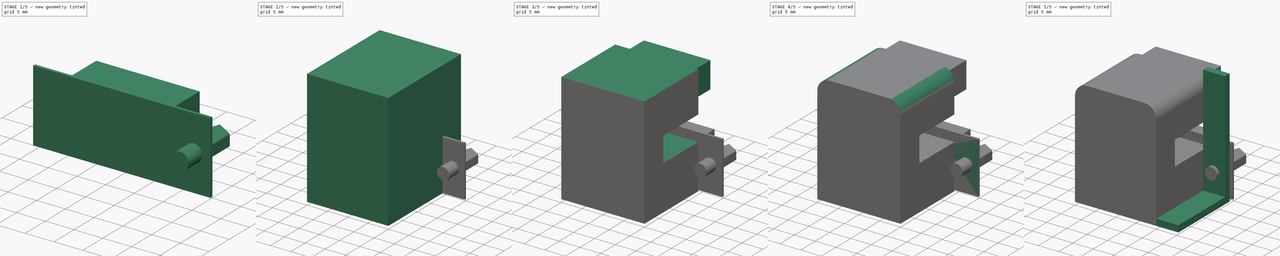
[diagram: build sequence overview — one tinted view per stage of 5, left to right]
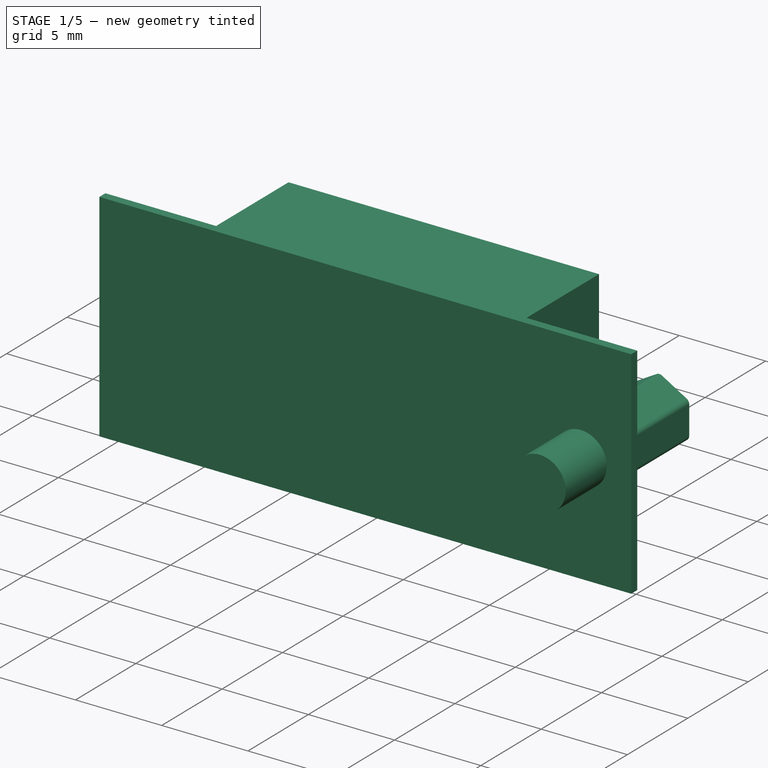
[diagram: stage 1 of 5 — iso view after this stage's code; geometry added in this stage tinted green]
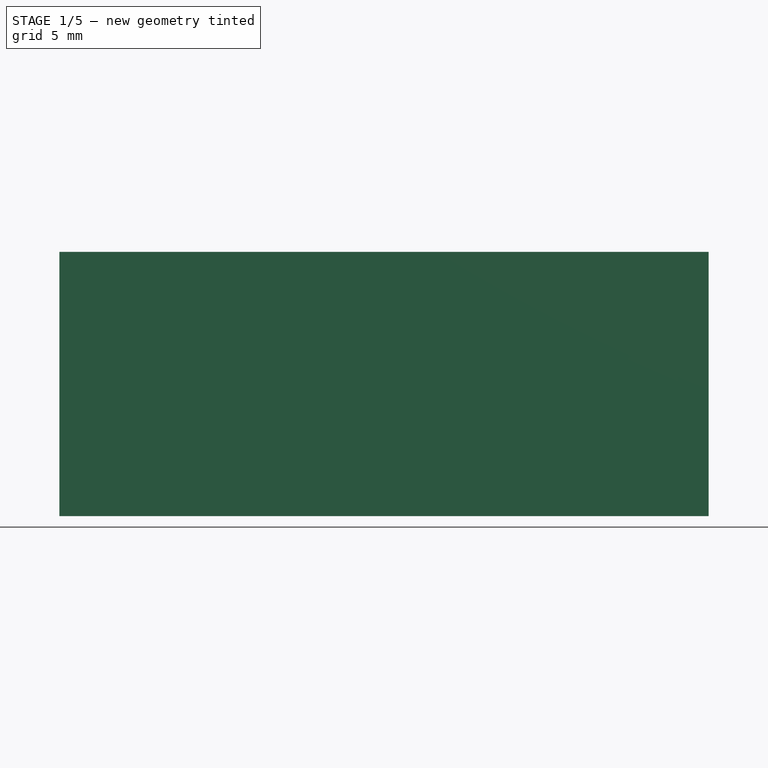
[diagram: stage 1 of 5 — front view after this stage's code; geometry added in this stage tinted green]
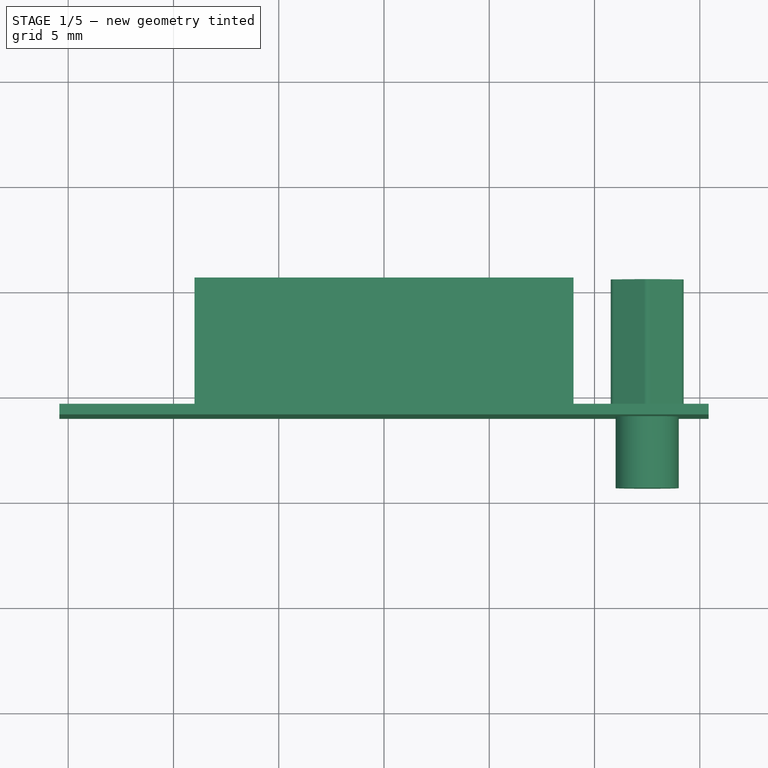
[diagram: stage 1 of 5 — top view after this stage's code; geometry added in this stage tinted green]
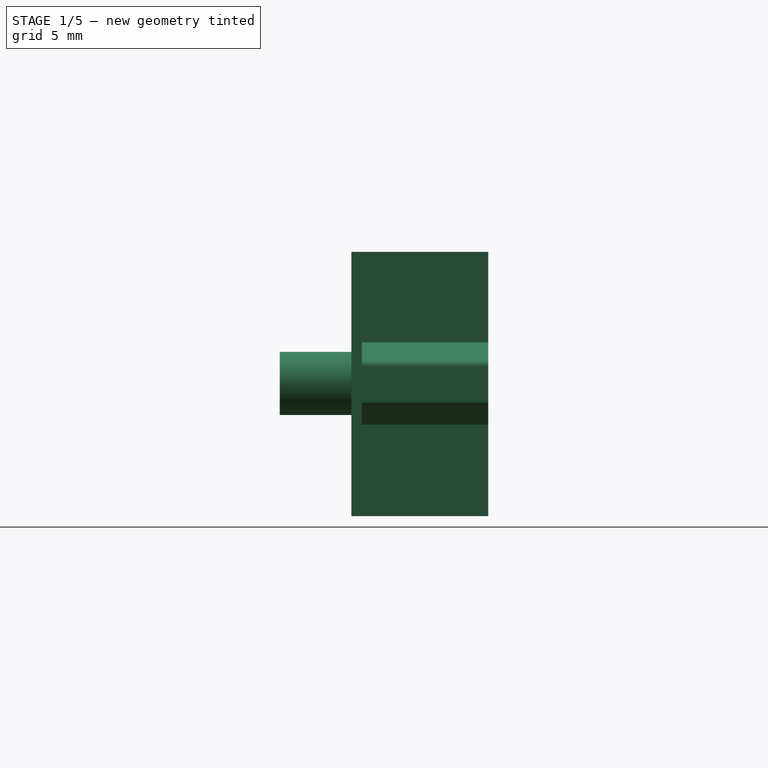
[diagram: stage 1 of 5 — right view after this stage's code; geometry added in this stage tinted green]
FCSTD DOCUMENT  (FreeCAD 0.19R24291 (Git))
Label: Amphenol_L17H1220134
License: All rights reserved
LicenseURL: http://en.wikipedia.org/wiki/All_rights_reserved
objects: PartDesign::SubtractiveBox×36, PartDesign::Fillet×21, PartDesign::SubtractiveCylinder×12, PartDesign::AdditiveBox×11, PartDesign::Body×10, PartDesign::AdditiveCylinder×6, PartDesign::SubtractiveCone×4, PartDesign::AdditivePrism×4, Sketcher::SketchObject×2, PartDesign::Chamfer×2, Part::Feature×1
note: 205 computed .brp shape members not serialized (recipe doc carries the construction recipe); baked Part::Feature solids carry a one-line shape summary decoded from their .brp

FEATURE [PartDesign::Body] Body  label="plastic-Chassis"
  Group = -> [Sketch,Box,Box001,Box002,Box003,Box008,Box009,Box010,Box011,Box012,Box019,Box020,Box021,Box022,Cylinder,Cylinder001,Cylinder002,Cylinder003,Box023,Box024,Box025,Box026,Box027,Box028,Box029,Box030,Box033,Box034,Cylinder006,Box035,Box036,Cylinder007,Box037,Box038,Fillet008]
  Origin = -> Origin
  Tip = -> Fillet008
FEATURE [PartDesign::AdditiveBox] Box042
  AttacherType = Attacher::AttachEngine3D
  AttachmentOffset = pos=(-15.42,19,0) rot=(0,0,1;0rad)
  Height = 12.55
  Length = 30.84
  MapMode = 5
  Placement = pos=(-15.42,19,0) rot=(0,0,1;0rad)
  Support = -> [XY_Plane005]
  Width = 6.5
FEATURE [PartDesign::SubtractiveBox] Box043
  AttacherType = Attacher::AttachEngine3D
  AttachmentOffset = pos=(9,19.5,0) rot=(0,0,1;0rad)
  BaseFeature = -> Box042
  Height = 12.55
  Length = 6.5
  MapMode = 5
  Placement = pos=(9,19.5,0) rot=(0,0,1;0rad)
  Support = -> [XY_Plane005]
  Width = 6
FEATURE [PartDesign::SubtractiveBox] Box040
  AttacherType = Attacher::AttachEngine3D
  AttachmentOffset = pos=(-15.5,19.5,0) rot=(0,0,1;0rad)
  BaseFeature = -> Box043
  Height = 12.55
  Length = 6.5
  MapMode = 5
  Placement = pos=(-15.5,19.5,0) rot=(0,0,1;0rad)
  Support = -> [XY_Plane005]
  Width = 6
FEATURE [PartDesign::Body] Body005  label="Front-plate002"
  Group = -> [Box042,Box043,Box040,Box044,Box041,Box039,Cylinder008,Cylinder009,Chamfer001,Fillet012,Fillet009,Fillet013,Fillet010,Fillet014,Fillet011,Cone002,Fillet015,Cone003,Fillet016,Box045,Box046]
  Origin = -> Origin005
  Placement = pos=(0,0,15.85) rot=(0,0,1;0rad)
  Tip = -> Box046
FEATURE [PartDesign::AdditivePrism] Prism
  AttacherType = Attacher::AttachEngine3D
  AttachmentOffset = pos=(12.5,25.5,6.3) rot=(0.57735,0.57735,-0.57735;2.0944rad)
  Circumradius = 2
  FirstAngle = 0
  Height = 6.5
  MapMode = 5
  Placement = pos=(12.5,25.5,6.3) rot=(0.57735,0.57735,-0.57735;2.0944rad)
  Polygon = 6
  SecondAngle = 0
  Support = -> [XY_Plane006]
FEATURE [PartDesign::Fillet] Fillet017
  Base = -> Prism [Edge8,Edge5,Edge11,Edge2,Edge1,Edge14]
  BaseFeature = -> Prism
  Placement = pos=(12.5,25.5,6.3) rot=(0.57735,0.57735,-0.57735;2.0944rad)
  Radius = 0.3
  SupportTransform = false
FEATURE [PartDesign::AdditiveCylinder] Cylinder010
  Angle = 360
  AttacherType = Attacher::AttachEngine3D
  AttachmentOffset = pos=(12.5,19,6.3) rot=(1,0,0;1.5708rad)
  BaseFeature = -> Fillet017
  Height = 3.4
  MapMode = 5
  Placement = pos=(12.5,19,6.3) rot=(1,0,0;1.5708rad)
  Radius = 1.5
  Support = -> [XY_Plane006]
FEATURE [PartDesign::SubtractiveCylinder] Cylinder011
  Angle = 360
  AttacherType = Attacher::AttachEngine3D
  AttachmentOffset = pos=(12.5,26,6.3) rot=(1,0,0;1.5708rad)
  BaseFeature = -> Cylinder010
  Height = 6.5
  MapMode = 5
  Placement = pos=(12.5,26,6.3) rot=(1,0,0;1.5708rad)
  Radius = 1
  Support = -> [XY_Plane006]
FEATURE [PartDesign::Body] Body006  label="screw1"
  Group = -> [Prism,Fillet017,Cylinder010,Cylinder011]
  Origin = -> Origin006
  Tip = -> Cylinder011
FEATURE [PartDesign::AdditivePrism] Prism001
  AttacherType = Attacher::AttachEngine3D
  AttachmentOffset = pos=(12.5,25.5,6.3) rot=(0.57735,0.57735,-0.57735;2.0944rad)
  Circumradius = 2
  FirstAngle = 0
  Height = 6.5
  MapMode = 5
  Placement = pos=(12.5,25.5,6.3) rot=(0.57735,0.57735,-0.57735;2.0944rad)
  Polygon = 6
  SecondAngle = 0
  Support = -> [XY_Plane007]
FEATURE [PartDesign::Fillet] Fillet018
  Base = -> Prism001 [Edge8,Edge5,Edge11,Edge2,Edge1,Edge14]
  BaseFeature = -> Prism001
  Placement = pos=(12.5,25.5,6.3) rot=(0.57735,0.57735,-0.57735;2.0944rad)
  Radius = 0.3
  SupportTransform = false
FEATURE [PartDesign::AdditiveCylinder] Cylinder012
  Angle = 360
  AttacherType = Attacher::AttachEngine3D
  AttachmentOffset = pos=(12.5,19,6.3) rot=(1,0,0;1.5708rad)
  BaseFeature = -> Fillet018
  Height = 3.4
  MapMode = 5
  Placement = pos=(12.5,19,6.3) rot=(1,0,0;1.5708rad)
  Radius = 1.5
  Support = -> [XY_Plane007]
FEATURE [PartDesign::SubtractiveCylinder] Cylinder013
  Angle = 360
  AttacherType = Attacher::AttachEngine3D
  AttachmentOffset = pos=(12.5,26,6.3) rot=(1,0,0;1.5708rad)
  BaseFeature = -> Cylinder012
  Height = 6.5
  MapMode = 5
  Placement = pos=(12.5,26,6.3) rot=(1,0,0;1.5708rad)
  Radius = 1
  Support = -> [XY_Plane007]
FEATURE [PartDesign::Body] Body007  label="screw002"
  Group = -> [Prism001,Fillet018,Cylinder012,Cylinder013]
  Origin = -> Origin007
  Placement = pos=(-25,0,0) rot=(0,0,1;0rad)
  Tip = -> Cylinder013
FEATURE [PartDesign::AdditivePrism] Prism002
  AttacherType = Attacher::AttachEngine3D
  AttachmentOffset = pos=(12.5,25.5,6.3) rot=(0.57735,0.57735,-0.57735;2.0944rad)
  Circumradius = 2
  FirstAngle = 0
  Height = 6.5
  MapMode = 5
  Placement = pos=(12.5,25.5,6.3) rot=(0.57735,0.57735,-0.57735;2.0944rad)
  Polygon = 6
  SecondAngle = 0
  Support = -> [XY_Plane008]
FEATURE [PartDesign::Fillet] Fillet019
  Base = -> Prism002 [Edge8,Edge5,Edge11,Edge2,Edge1,Edge14]
  BaseFeature = -> Prism002
  Placement = pos=(12.5,25.5,6.3) rot=(0.57735,0.57735,-0.57735;2.0944rad)
  Radius = 0.3
  SupportTransform = false
FEATURE [PartDesign::AdditiveCylinder] Cylinder014
  Angle = 360
  AttacherType = Attacher::AttachEngine3D
  AttachmentOffset = pos=(12.5,19,6.3) rot=(1,0,0;1.5708rad)
  BaseFeature = -> Fillet019
  Height = 3.4
  MapMode = 5
  Placement = pos=(12.5,19,6.3) rot=(1,0,0;1.5708rad)
  Radius = 1.5
  Support = -> [XY_Plane008]
FEATURE [PartDesign::SubtractiveCylinder] Cylinder015
  Angle = 360
  AttacherType = Attacher::AttachEngine3D
  AttachmentOffset = pos=(12.5,26,6.3) rot=(1,0,0;1.5708rad)
  BaseFeature = -> Cylinder014
  Height = 6.5
  MapMode = 5
  Placement = pos=(12.5,26,6.3) rot=(1,0,0;1.5708rad)
  Radius = 1
  Support = -> [XY_Plane008]
FEATURE [PartDesign::Body] Body008  label="screw003"
  Group = -> [Prism002,Fillet019,Cylinder014,Cylinder015]
  Origin = -> Origin008
  Placement = pos=(0,0,15.85) rot=(0,0,1;0rad)
  Tip = -> Cylinder015
FEATURE [PartDesign::AdditivePrism] Prism003
  AttacherType = Attacher::AttachEngine3D
  AttachmentOffset = pos=(12.5,25.5,6.3) rot=(0.57735,0.57735,-0.57735;2.0944rad)
  Circumradius = 2
  FirstAngle = 0
  Height = 6.5
  MapMode = 5
  Placement = pos=(12.5,25.5,6.3) rot=(0.57735,0.57735,-0.57735;2.0944rad)
  Polygon = 6
  SecondAngle = 0
  Support = -> [XY_Plane009]
FEATURE [PartDesign::Fillet] Fillet020
  Base = -> Prism003 [Edge8,Edge5,Edge11,Edge2,Edge1,Edge14]
  BaseFeature = -> Prism003
  Placement = pos=(12.5,25.5,6.3) rot=(0.57735,0.57735,-0.57735;2.0944rad)
  Radius = 0.3
  SupportTransform = false
FEATURE [PartDesign::AdditiveCylinder] Cylinder016
  Angle = 360
  AttacherType = Attacher::AttachEngine3D
  AttachmentOffset = pos=(12.5,19,6.3) rot=(1,0,0;1.5708rad)
  BaseFeature = -> Fillet020
  Height = 3.4
  MapMode = 5
  Placement = pos=(12.5,19,6.3) rot=(1,0,0;1.5708rad)
  Radius = 1.5
  Support = -> [XY_Plane009]
FEATURE [PartDesign::SubtractiveCylinder] Cylinder017
  Angle = 360
  AttacherType = Attacher::AttachEngine3D
  AttachmentOffset = pos=(12.5,26,6.3) rot=(1,0,0;1.5708rad)
  BaseFeature = -> Cylinder016
  Height = 6.5
  MapMode = 5
  Placement = pos=(12.5,26,6.3) rot=(1,0,0;1.5708rad)
  Radius = 1
  Support = -> [XY_Plane009]
FEATURE [PartDesign::Body] Body009  label="screw004"
  Group = -> [Prism003,Fillet020,Cylinder016,Cylinder017]
  Origin = -> Origin009
  Placement = pos=(-25,0,15.85) rot=(0,0,1;0rad)
  Tip = -> Cylinder017
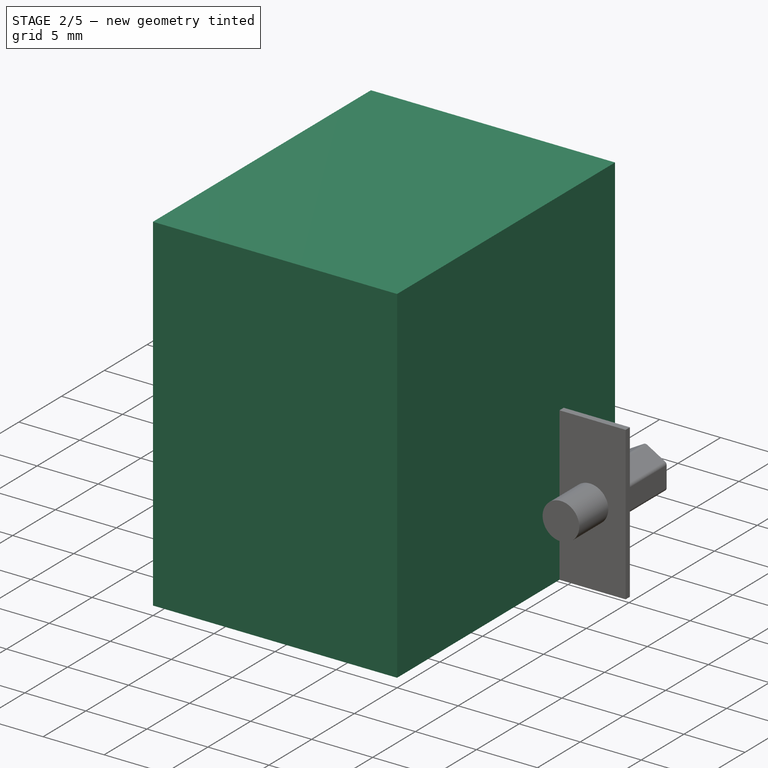
[diagram: stage 2 of 5 — iso view after this stage's code; geometry added in this stage tinted green]
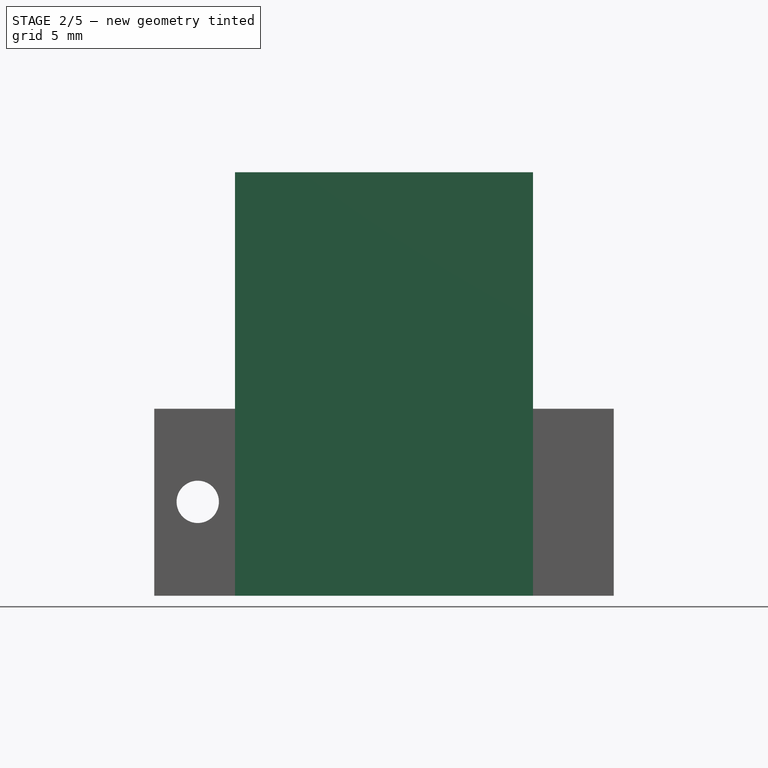
[diagram: stage 2 of 5 — front view after this stage's code; geometry added in this stage tinted green]
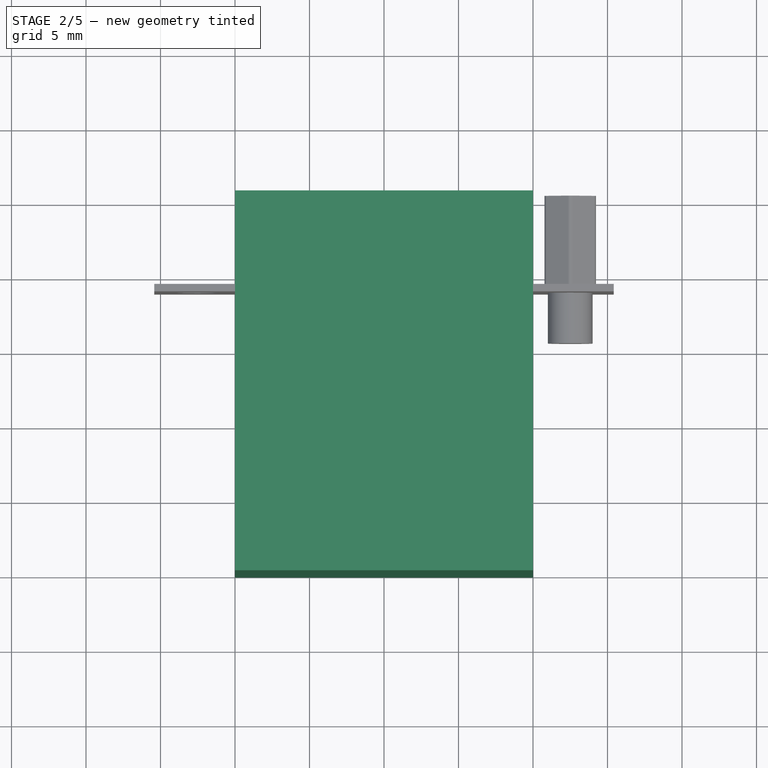
[diagram: stage 2 of 5 — top view after this stage's code; geometry added in this stage tinted green]
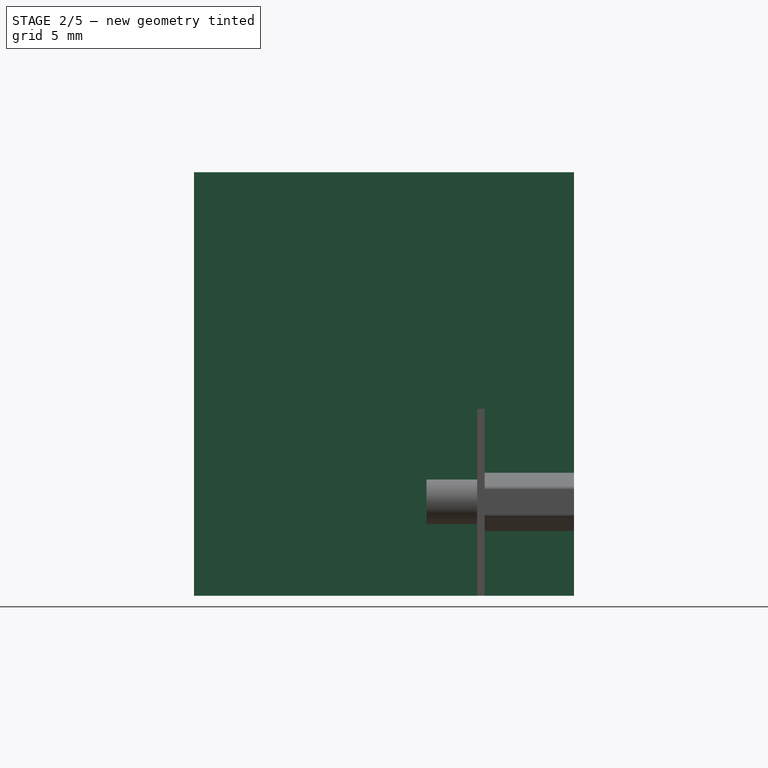
[diagram: stage 2 of 5 — right view after this stage's code; geometry added in this stage tinted green]
FEATURE [Sketcher::SketchObject] Sketch  label="outline-sketch"
  FullyConstrained = false
  MapMode = 5
  Support = -> [XY_Plane]
  sketch-geometry (16):
    g0: LineSegment StartX=-15.495 StartY=6.37755e-05 StartZ=0 EndX=-15.47 EndY=19.6001 EndZ=0
    g1: LineSegment StartX=-15.37 StartY=19.5999 StartZ=0 EndX=-15.395 EndY=-6.37755e-05 EndZ=0
    g2: LineSegment StartX=-15.42 StartY=19.65 StartZ=0 EndX=-8.46 EndY=19.65 EndZ=0
    g3: LineSegment StartX=-8.46 StartY=19.55 StartZ=0 EndX=-15.42 EndY=19.55 EndZ=0
    g4: LineSegment StartX=15.42 StartY=19.55 StartZ=0 EndX=-15.42 EndY=19.55 EndZ=0
    g5: LineSegment StartX=-15.42 StartY=19.65 StartZ=0 EndX=15.42 EndY=19.65 EndZ=0
    g6: LineSegment StartX=8.41 StartY=19.6 StartZ=0 EndX=8.41 EndY=25.5 EndZ=0
    g7: LineSegment StartX=8.51 StartY=25.5 StartZ=0 EndX=8.51 EndY=19.6 EndZ=0
    g8: LineSegment StartX=-8.41 StartY=25.5 StartZ=0 EndX=-8.41 EndY=19.6 EndZ=0
    g9: LineSegment StartX=-8.51 StartY=19.6 StartZ=0 EndX=-8.51 EndY=25.5 EndZ=0
    g10: LineSegment StartX=8.46 StartY=25.45 StartZ=0 EndX=-8.46 EndY=25.45 EndZ=0
    g11: LineSegment StartX=-8.46 StartY=25.55 StartZ=0 EndX=8.46 EndY=25.55 EndZ=0
    g12: LineSegment StartX=15.37 StartY=0 StartZ=0 EndX=15.37 EndY=19.6 EndZ=0
    g13: LineSegment StartX=15.47 StartY=19.6 StartZ=0 EndX=15.47 EndY=0 EndZ=0
    g14: LineSegment StartX=15.42 StartY=-0.05 StartZ=0 EndX=-15.445 EndY=-0.05 EndZ=0
    g15: LineSegment StartX=-15.445 StartY=0.05 StartZ=0 EndX=15.42 EndY=0.05 EndZ=0
FEATURE [Sketcher::SketchObject] Sketch001  label="Pins-sketch"
  FullyConstrained = false
  MapMode = 5
  Support = -> [XY_Plane001]
  sketch-geometry (44):
    g0: Circle CenterX=4.155 CenterY=11.6 CenterZ=0 NormalX=0 NormalY=0 NormalZ=1 AngleXU=0 Radius=0.515
    g1: Circle CenterX=4.155 CenterY=11.6 CenterZ=0 NormalX=0 NormalY=0 NormalZ=1 AngleXU=0 Radius=0.51
    g2: Circle CenterX=-2.77 CenterY=9.06 CenterZ=0 NormalX=0 NormalY=0 NormalZ=1 AngleXU=0 Radius=0.515
    g3: Circle CenterX=-2.77 CenterY=9.06 CenterZ=0 NormalX=0 NormalY=0 NormalZ=1 AngleXU=0 Radius=0.51
    g4: Circle CenterX=-5.48 CenterY=9.06 CenterZ=0 NormalX=0 NormalY=0 NormalZ=1 AngleXU=0 Radius=0.515
    g5: Circle CenterX=-5.48 CenterY=9.06 CenterZ=0 NormalX=0 NormalY=0 NormalZ=1 AngleXU=0 Radius=0.51
    g6: Circle CenterX=-1.385 CenterY=11.6 CenterZ=0 NormalX=0 NormalY=0 NormalZ=1 AngleXU=0 Radius=0.515
    g7: Circle CenterX=-1.385 CenterY=11.6 CenterZ=0 NormalX=0 NormalY=0 NormalZ=1 AngleXU=0 Radius=0.51
    g8: Circle CenterX=1.385 CenterY=11.6 CenterZ=0 NormalX=0 NormalY=0 NormalZ=1 AngleXU=0 Radius=0.515
    g9: Circle CenterX=1.385 CenterY=11.6 CenterZ=0 NormalX=0 NormalY=0 NormalZ=1 AngleXU=0 Radius=0.51
    g10: Circle CenterX=0 CenterY=8.9076 CenterZ=0 NormalX=0 NormalY=0 NormalZ=1 AngleXU=0 Radius=0.515
    g11: Circle CenterX=0 CenterY=8.9076 CenterZ=0 NormalX=0 NormalY=0 NormalZ=1 AngleXU=0 Radius=0.51
    g12: Circle CenterX=-4.095 CenterY=11.6 CenterZ=0 NormalX=0 NormalY=0 NormalZ=1 AngleXU=0 Radius=0.515
    g13: Circle CenterX=-4.095 CenterY=11.6 CenterZ=0 NormalX=0 NormalY=0 NormalZ=1 AngleXU=0 Radius=0.51
    g14: Circle CenterX=2.77 CenterY=9.06 CenterZ=0 NormalX=0 NormalY=0 NormalZ=1 AngleXU=0 Radius=0.515
    g15: Circle CenterX=2.77 CenterY=9.06 CenterZ=0 NormalX=0 NormalY=0 NormalZ=1 AngleXU=0 Radius=0.51
    g16: Circle CenterX=5.48 CenterY=9.06 CenterZ=0 NormalX=0 NormalY=0 NormalZ=1 AngleXU=0 Radius=0.515
    g17: Circle CenterX=5.48 CenterY=9.06 CenterZ=0 NormalX=0 NormalY=0 NormalZ=1 AngleXU=0 Radius=0.51
    g18: Circle CenterX=12.495 CenterY=11.6 CenterZ=0 NormalX=0 NormalY=0 NormalZ=1 AngleXU=0 Radius=1.53
    g19: Circle CenterX=12.495 CenterY=11.6 CenterZ=0 NormalX=0 NormalY=0 NormalZ=1 AngleXU=0 Radius=1.525
    g20: Circle CenterX=-12.495 CenterY=11.6 CenterZ=0 NormalX=0 NormalY=0 NormalZ=1 AngleXU=0 Radius=1.53
    g21: Circle CenterX=-12.495 CenterY=11.6 CenterZ=0 NormalX=0 NormalY=0 NormalZ=1 AngleXU=0 Radius=1.525
    g22: Circle CenterX=5.48 CenterY=2.6 CenterZ=0 NormalX=0 NormalY=0 NormalZ=1 AngleXU=0 Radius=0.515
    g23: Circle CenterX=5.48 CenterY=2.6 CenterZ=0 NormalX=0 NormalY=0 NormalZ=1 AngleXU=0 Radius=0.51
    g24: Circle CenterX=2.77 CenterY=2.6 CenterZ=0 NormalX=0 NormalY=0 NormalZ=1 AngleXU=0 Radius=0.515
    g25: Circle CenterX=2.77 CenterY=2.6 CenterZ=0 NormalX=0 NormalY=0 NormalZ=1 AngleXU=0 Radius=0.51
    g26: Circle CenterX=0 CenterY=2.4476 CenterZ=0 NormalX=0 NormalY=0 NormalZ=1 AngleXU=0 Radius=0.515
    g27: Circle CenterX=0 CenterY=2.4476 CenterZ=0 NormalX=0 NormalY=0 NormalZ=1 AngleXU=0 Radius=0.51
    g28: Circle CenterX=-2.77 CenterY=2.6 CenterZ=0 NormalX=0 NormalY=0 NormalZ=1 AngleXU=0 Radius=0.515
    g29: Circle CenterX=-2.77 CenterY=2.6 CenterZ=0 NormalX=0 NormalY=0 NormalZ=1 AngleXU=0 Radius=0.51
    g30: Circle CenterX=-5.48 CenterY=2.6 CenterZ=0 NormalX=0 NormalY=0 NormalZ=1 AngleXU=0 Radius=0.515
    g31: Circle CenterX=-5.48 CenterY=2.6 CenterZ=0 NormalX=0 NormalY=0 NormalZ=1 AngleXU=0 Radius=0.51
    g32: Circle CenterX=-4.095 CenterY=5.14 CenterZ=0 NormalX=0 NormalY=0 NormalZ=1 AngleXU=0 Radius=0.515
    g33: Circle CenterX=-4.095 CenterY=5.14 CenterZ=0 NormalX=0 NormalY=0 NormalZ=1 AngleXU=0 Radius=0.51
    g34: Circle CenterX=-1.385 CenterY=5.14 CenterZ=0 NormalX=0 NormalY=0 NormalZ=1 AngleXU=0 Radius=0.515
    g35: Circle CenterX=-1.385 CenterY=5.14 CenterZ=0 NormalX=0 NormalY=0 NormalZ=1 AngleXU=0 Radius=0.51
    g36: Circle CenterX=1.385 CenterY=5.14 CenterZ=0 NormalX=0 NormalY=0 NormalZ=1 AngleXU=0 Radius=0.515
    g37: Circle CenterX=1.385 CenterY=5.14 CenterZ=0 NormalX=0 NormalY=0 NormalZ=1 AngleXU=0 Radius=0.51
    g38: Circle CenterX=4.155 CenterY=5.14 CenterZ=0 NormalX=0 NormalY=0 NormalZ=1 AngleXU=0 Radius=0.515
    g39: Circle CenterX=4.155 CenterY=5.14 CenterZ=0 NormalX=0 NormalY=0 NormalZ=1 AngleXU=0 Radius=0.51
    g40: Circle CenterX=12.495 CenterY=3.87 CenterZ=0 NormalX=0 NormalY=0 NormalZ=1 AngleXU=0 Radius=1.53
    g41: Circle CenterX=12.495 CenterY=3.87 CenterZ=0 NormalX=0 NormalY=0 NormalZ=1 AngleXU=0 Radius=1.525
    g42: Circle CenterX=-12.495 CenterY=3.87 CenterZ=0 NormalX=0 NormalY=0 NormalZ=1 AngleXU=0 Radius=1.53
    g43: Circle CenterX=-12.495 CenterY=3.87 CenterZ=0 NormalX=0 NormalY=0 NormalZ=1 AngleXU=0 Radius=1.525
FEATURE [PartDesign::Body] Body001  label="Pins"
  Group = -> [Sketch001]
  Origin = -> Origin001
FEATURE [PartDesign::AdditiveBox] Box
  AttacherType = Attacher::AttachEngine3D
  AttachmentOffset = pos=(-10,0,0) rot=(0,0,1;0rad)
  Height = 28.42
  Length = 20
  MapMode = 5
  Placement = pos=(-10,0,0) rot=(0,0,1;0rad)
  Support = -> [XY_Plane]
  Width = 25.5
FEATURE [PartDesign::SubtractiveBox] Box044
  AttacherType = Attacher::AttachEngine3D
  AttachmentOffset = pos=(-7.9,19,3) rot=(0,0,1;0rad)
  BaseFeature = -> Box040
  Height = 6.2
  Length = 15.8
  MapMode = 5
  Placement = pos=(-7.9,19,3) rot=(0,0,1;0rad)
  Support = -> [XY_Plane005]
  Width = 7
FEATURE [PartDesign::SubtractiveBox] Box041
  AttacherType = Attacher::AttachEngine3D
  AttachmentOffset = pos=(-11.5,19.5,0) rot=(0,0,1;0rad)
  BaseFeature = -> Box044
  Height = 1.6
  Length = 23
  MapMode = 5
  Placement = pos=(-11.5,19.5,0) rot=(0,0,1;0rad)
  Support = -> [XY_Plane005]
  Width = 6
FEATURE [PartDesign::SubtractiveBox] Box039
  AttacherType = Attacher::AttachEngine3D
  AttachmentOffset = pos=(-9.5,19.5,10.55) rot=(0,0,1;0rad)
  BaseFeature = -> Box041
  Height = 2
  Length = 19
  MapMode = 5
  Placement = pos=(-9.5,19.5,10.55) rot=(0,0,1;0rad)
  Support = -> [XY_Plane005]
  Width = 6
FEATURE [PartDesign::SubtractiveCylinder] Cylinder008  label="screw-hole-front-left001"
  Angle = 360
  AttacherType = Attacher::AttachEngine3D
  AttachmentOffset = pos=(12.5,21,6.3) rot=(1,0,0;1.5708rad)
  BaseFeature = -> Box039
  Height = 3
  MapMode = 5
  Placement = pos=(12.5,21,6.3) rot=(1,0,0;1.5708rad)
  Radius = 1.42
  Support = -> [XY_Plane005]
FEATURE [PartDesign::SubtractiveCylinder] Cylinder009  label="screw-hole-front-right001"
  Angle = 360
  AttacherType = Attacher::AttachEngine3D
  AttachmentOffset = pos=(-12.5,20,6.3) rot=(1,0,0;1.5708rad)
  BaseFeature = -> Cylinder008
  Height = 3
  MapMode = 5
  Placement = pos=(-12.5,20,6.3) rot=(1,0,0;1.5708rad)
  Radius = 1.42
  Support = -> [XY_Plane005]
FEATURE [PartDesign::Chamfer] Chamfer001
  Angle = 10
  Base = -> Cylinder009 [Edge53,Edge55]
  BaseFeature = -> Cylinder009
  ChamferType = 2
  FlipDirection = false
  Placement = pos=(-12.5,20,6.3) rot=(1,0,0;1.5708rad)
  Size = 4.5
  Size2 = 1
  SupportTransform = false
FEATURE [PartDesign::Fillet] Fillet012
  Base = -> Chamfer001 [Edge14]
  BaseFeature = -> Chamfer001
  Placement = pos=(-12.5,20,6.3) rot=(1,0,0;1.5708rad)
  Radius = 5
  SupportTransform = false
FEATURE [PartDesign::Fillet] Fillet009
  Base = -> Fillet012 [Edge16]
  BaseFeature = -> Fillet012
  Placement = pos=(-12.5,20,6.3) rot=(1,0,0;1.5708rad)
  Radius = 1.5
  SupportTransform = false
FEATURE [PartDesign::Fillet] Fillet013
  Base = -> Fillet009 [Edge26]
  BaseFeature = -> Fillet009
  Placement = pos=(-12.5,20,6.3) rot=(1,0,0;1.5708rad)
  Radius = 5
  SupportTransform = false
FEATURE [PartDesign::Fillet] Fillet010
  Base = -> Fillet013 [Edge17]
  BaseFeature = -> Fillet013
  Placement = pos=(-12.5,20,6.3) rot=(1,0,0;1.5708rad)
  Radius = 1.5
  SupportTransform = false
FEATURE [PartDesign::Fillet] Fillet014
  Base = -> Fillet010 [Edge25]
  BaseFeature = -> Fillet010
  Placement = pos=(-12.5,20,6.3) rot=(1,0,0;1.5708rad)
  Radius = 1.5
  SupportTransform = false
FEATURE [PartDesign::Fillet] Fillet011
  Base = -> Fillet014 [Edge18]
  BaseFeature = -> Fillet014
  Placement = pos=(-12.5,20,6.3) rot=(1,0,0;1.5708rad)
  Radius = 1.5
  SupportTransform = false
FEATURE [PartDesign::SubtractiveCone] Cone002
  Angle = 360
  AttacherType = Attacher::AttachEngine3D
  AttachmentOffset = pos=(12.5,19.5,6.3) rot=(1,0,0;1.5708rad)
  BaseFeature = -> Fillet011
  Height = 0.2
  MapMode = 5
  Placement = pos=(12.5,19.5,6.3) rot=(1,0,0;1.5708rad)
  Radius1 = 2.42
  Radius2 = 1.32
  Support = -> [XY_Plane005]
FEATURE [PartDesign::Fillet] Fillet015
  Base = -> Cone002 [Edge56]
  BaseFeature = -> Cone002
  Placement = pos=(12.5,19.5,6.3) rot=(1,0,0;1.5708rad)
  Radius = 0.38
  SupportTransform = false
FEATURE [PartDesign::SubtractiveCone] Cone003
  Angle = 360
  AttacherType = Attacher::AttachEngine3D
  AttachmentOffset = pos=(-12.5,19.5,6.3) rot=(1,0,0;1.5708rad)
  BaseFeature = -> Fillet015
  Height = 0.2
  MapMode = 5
  Placement = pos=(-12.5,19.5,6.3) rot=(1,0,0;1.5708rad)
  Radius1 = 2.42
  Radius2 = 1.32
  Support = -> [XY_Plane005]
FEATURE [PartDesign::Fillet] Fillet016
  Base = -> Cone003 [Edge60]
  BaseFeature = -> Cone003
  Placement = pos=(-12.5,19.5,6.3) rot=(1,0,0;1.5708rad)
  Radius = 0.38
  SupportTransform = false
FEATURE [PartDesign::SubtractiveBox] Box045
  AttacherType = Attacher::AttachEngine3D
  AttachmentOffset = pos=(8,19.5,0) rot=(0,1,0;0.174533rad)
  BaseFeature = -> Fillet016
  Height = 10
  Length = 1
  MapMode = 5
  Placement = pos=(8,19.5,0) rot=(0,1,0;0.174533rad)
  Support = -> [XY_Plane005]
  Width = 6
FEATURE [PartDesign::SubtractiveBox] Box046
  AttacherType = Attacher::AttachEngine3D
  AttachmentOffset = pos=(-9,19.5,0) rot=(0,-1,0;0.174533rad)
  BaseFeature = -> Box045
  Height = 10
  Length = 1
  MapMode = 5
  Placement = pos=(-9,19.5,0) rot=(0,-1,0;0.174533rad)
  Support = -> [XY_Plane005]
  Width = 6
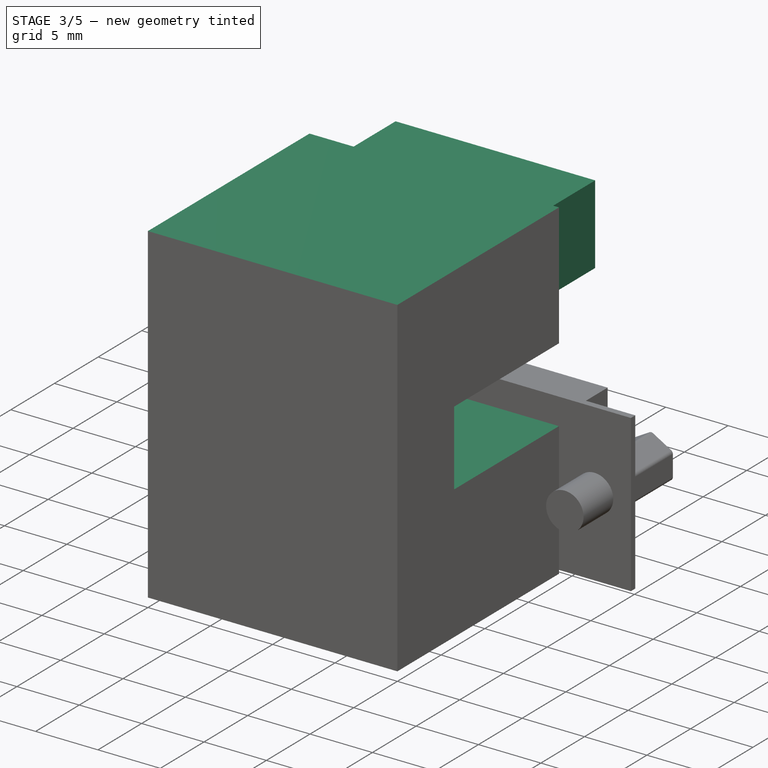
[diagram: stage 3 of 5 — iso view after this stage's code; geometry added in this stage tinted green]
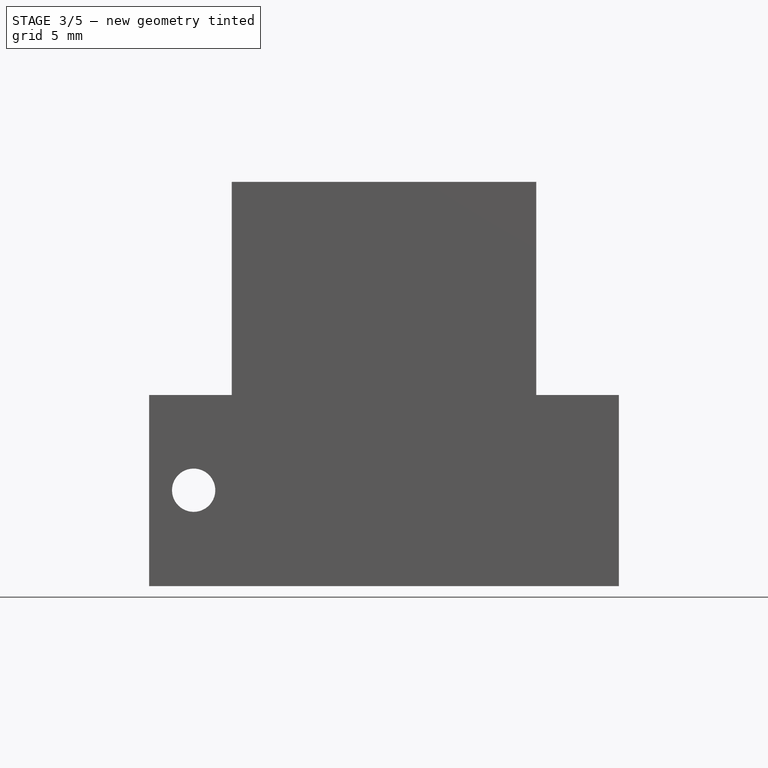
[diagram: stage 3 of 5 — front view after this stage's code; geometry added in this stage tinted green]
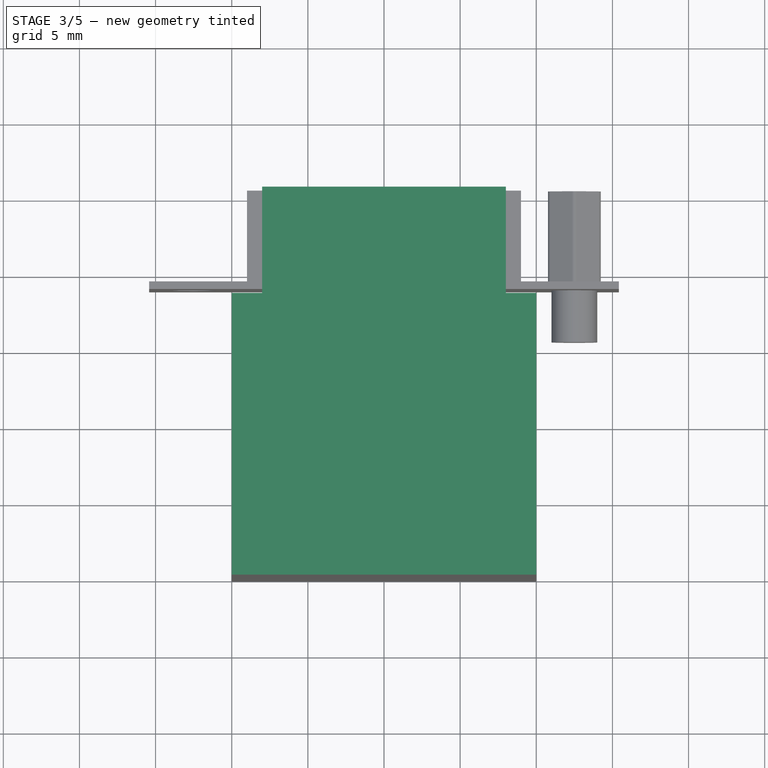
[diagram: stage 3 of 5 — top view after this stage's code; geometry added in this stage tinted green]
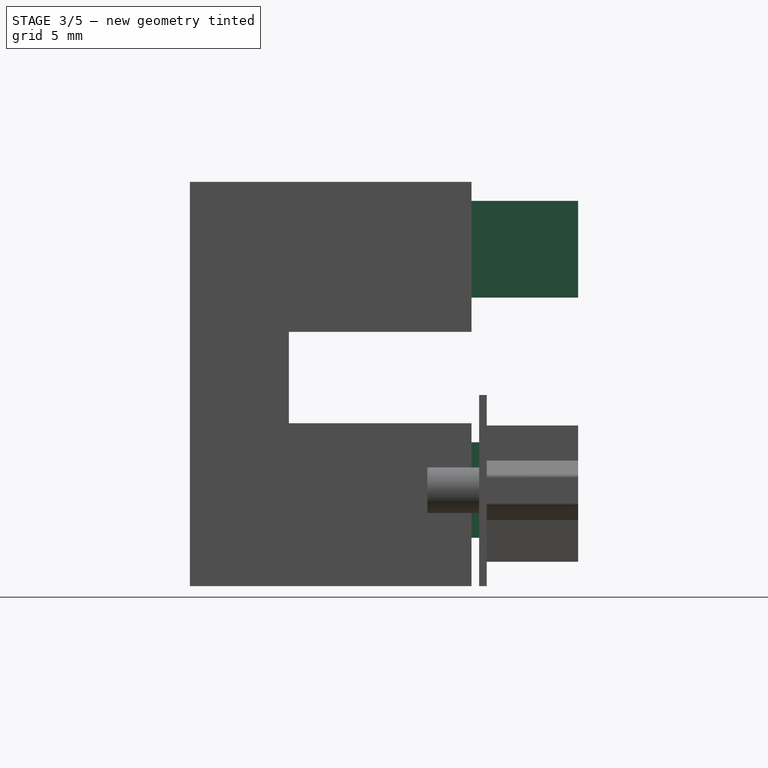
[diagram: stage 3 of 5 — right view after this stage's code; geometry added in this stage tinted green]
FEATURE [PartDesign::SubtractiveBox] Box001  label="nose-cut-right"
  AttacherType = Attacher::AttachEngine3D
  AttachmentOffset = pos=(-10,18.5,0) rot=(0,0,1;0rad)
  BaseFeature = -> Box
  Height = 31.5
  Length = 2
  MapMode = 5
  Placement = pos=(-10,18.5,0) rot=(0,0,1;0rad)
  Support = -> [XY_Plane]
  Width = 7
FEATURE [PartDesign::SubtractiveBox] Box002  label="nose-cut-left"
  AttacherType = Attacher::AttachEngine3D
  AttachmentOffset = pos=(8,18.5,0) rot=(0,0,1;0rad)
  BaseFeature = -> Box001
  Height = 31
  Length = 2
  MapMode = 5
  Placement = pos=(8,18.5,0) rot=(0,0,1;0rad)
  Support = -> [XY_Plane]
  Width = 7.5
FEATURE [PartDesign::SubtractiveBox] Box003  label="mid-gut-cut"
  AttacherType = Attacher::AttachEngine3D
  AttachmentOffset = pos=(-10.5,6.5,10.7) rot=(0,0,1;0rad)
  BaseFeature = -> Box002
  Height = 6
  Length = 21
  MapMode = 5
  Placement = pos=(-10.5,6.5,10.7) rot=(0,0,1;0rad)
  Support = -> [XY_Plane]
  Width = 19
FEATURE [PartDesign::Body] Body003  label="Metal-chassis2"
  Group = -> [Box007,Box006]
  Origin = -> Origin003
  Placement = pos=(-25.5,0,0) rot=(0,0,1;0rad)
  Tip = -> Box006
FEATURE [PartDesign::SubtractiveBox] Box008  label="closer-nose-mid-sep"
  AttacherType = Attacher::AttachEngine3D
  AttachmentOffset = pos=(-9,18.5,9.45) rot=(0,0,1;0rad)
  BaseFeature = -> Box003
  Height = 9.5
  Length = 18
  MapMode = 5
  Placement = pos=(-9,18.5,9.45) rot=(0,0,1;0rad)
  Support = -> [XY_Plane]
  Width = 7
FEATURE [PartDesign::SubtractiveBox] Box009  label="lowest-nose-cut"
  AttacherType = Attacher::AttachEngine3D
  AttachmentOffset = pos=(-11,18.5,0) rot=(0,0,1;0rad)
  BaseFeature = -> Box008
  Height = 3.175
  Length = 22
  MapMode = 5
  Placement = pos=(-11,18.5,0) rot=(0,0,1;0rad)
  Support = -> [XY_Plane]
  Width = 7
FEATURE [PartDesign::SubtractiveBox] Box010  label="highest-nose-cut"
  AttacherType = Attacher::AttachEngine3D
  AttachmentOffset = pos=(-11.5,18.5,25.3) rot=(0,0,1;0rad)
  BaseFeature = -> Box009
  Height = 3.2
  Length = 23
  MapMode = 5
  Placement = pos=(-11.5,18.5,25.3) rot=(0,0,1;0rad)
  Support = -> [XY_Plane]
  Width = 7
FEATURE [PartDesign::SubtractiveBox] Box011  label="back-mid-pin-hole"
  AttacherType = Attacher::AttachEngine3D
  AttachmentOffset = pos=(-0.5,1.95,0) rot=(0,0,1;0rad)
  BaseFeature = -> Box010
  Height = 24
  Length = 1
  MapMode = 5
  Placement = pos=(-0.5,1.95,0) rot=(0,0,1;0rad)
  Support = -> [XY_Plane]
  Width = 1
FEATURE [PartDesign::SubtractiveBox] Box012  label="pin-hole2"
  AttacherType = Attacher::AttachEngine3D
  AttachmentOffset = pos=(2.27,2.1,0) rot=(0,0,1;0rad)
  BaseFeature = -> Box011
  Height = 24
  Length = 1
  MapMode = 5
  Placement = pos=(2.27,2.1,0) rot=(0,0,1;0rad)
  Support = -> [XY_Plane]
  Width = 1
FEATURE [Part::Feature] Part__Feature  label="ref-model"
  Placement = pos=(0,19,22.15) rot=(0,1,0;3.14159rad)
  shape: bbox 30.82 x 25.5 x 32.15 mm, 2067 faces (baked)
FEATURE [PartDesign::SubtractiveBox] Box019  label="top-cut"
  AttacherType = Attacher::AttachEngine3D
  AttachmentOffset = pos=(-10.5,0,26.55) rot=(0,0,1;0rad)
  BaseFeature = -> Box012
  Height = 3
  Length = 21
  MapMode = 5
  Placement = pos=(-10.5,0,26.55) rot=(0,0,1;0rad)
  Support = -> [XY_Plane]
  Width = 20
FEATURE [PartDesign::SubtractiveBox] Box020  label="front-mid-pin-hole"
  AttacherType = Attacher::AttachEngine3D
  AttachmentOffset = pos=(-0.5,8.4,0) rot=(0,0,1;0rad)
  BaseFeature = -> Box019
  Height = 8.2
  Length = 1
  MapMode = 5
  Placement = pos=(-0.5,8.4,0) rot=(0,0,1;0rad)
  Support = -> [XY_Plane]
  Width = 1
FEATURE [PartDesign::SubtractiveBox] Box021  label="back-leftmost-pin-hole"
  AttacherType = Attacher::AttachEngine3D
  AttachmentOffset = pos=(4.975,2.1,0) rot=(0,0,1;0rad)
  BaseFeature = -> Box020
  Height = 24
  Length = 1
  MapMode = 5
  Placement = pos=(4.975,2.1,0) rot=(0,0,1;0rad)
  Support = -> [XY_Plane]
  Width = 1
FEATURE [PartDesign::SubtractiveBox] Box022  label="back-rightmost-pin-hole"
  AttacherType = Attacher::AttachEngine3D
  AttachmentOffset = pos=(-5.975,2.1,0) rot=(0,0,1;0rad)
  BaseFeature = -> Box021
  Height = 24
  Length = 1
  MapMode = 5
  Placement = pos=(-5.975,2.1,0) rot=(0,0,1;0rad)
  Support = -> [XY_Plane]
  Width = 1
FEATURE [PartDesign::SubtractiveCylinder] Cylinder  label="back-mid-front-hole"
  Angle = 360
  AttacherType = Attacher::AttachEngine3D
  AttachmentOffset = pos=(0,28,7.7) rot=(1,0,0;1.5708rad)
  BaseFeature = -> Box022
  Height = 19
  MapMode = 5
  Placement = pos=(0,28,7.7) rot=(1,0,0;1.5708rad)
  Radius = 0.5
  Support = -> [XY_Plane]
FEATURE [PartDesign::SubtractiveCylinder] Cylinder001  label="top-mid-front-hole"
  Angle = 360
  AttacherType = Attacher::AttachEngine3D
  AttachmentOffset = pos=(0,2,23.55) rot=(-1,0,0;1.5708rad)
  BaseFeature = -> Cylinder
  Height = 24
  MapMode = 5
  Placement = pos=(0,2,23.55) rot=(-1,0,0;1.5708rad)
  Radius = 0.5
  Support = -> [XY_Plane]
FEATURE [PartDesign::SubtractiveCylinder] Cylinder002  label="leftmost-front-low-hole"
  Angle = 360
  AttacherType = Attacher::AttachEngine3D
  AttachmentOffset = pos=(5.475,9.2,7.7) rot=(-1,0,0;1.5708rad)
  BaseFeature = -> Cylinder001
  Height = 17
  MapMode = 5
  Placement = pos=(5.475,9.2,7.7) rot=(-1,0,0;1.5708rad)
  Radius = 0.5
  Support = -> [XY_Plane]
FEATURE [PartDesign::SubtractiveCylinder] Cylinder003  label="rightmost-front-low-hole"
  Angle = 360
  AttacherType = Attacher::AttachEngine3D
  AttachmentOffset = pos=(-5.475,9,7.7) rot=(-1,0,0;1.5708rad)
  BaseFeature = -> Cylinder002
  Height = 17
  MapMode = 5
  Placement = pos=(-5.475,9,7.7) rot=(-1,0,0;1.5708rad)
  Radius = 0.5
  Support = -> [XY_Plane]
FEATURE [PartDesign::SubtractiveBox] Box023  label="back-right-pin-hole"
  AttacherType = Attacher::AttachEngine3D
  AttachmentOffset = pos=(-3.275,2.1,0) rot=(0,0,1;0rad)
  BaseFeature = -> Cylinder003
  Height = 24
  Length = 1
  MapMode = 5
  Placement = pos=(-3.275,2.1,0) rot=(0,0,1;0rad)
  Support = -> [XY_Plane]
  Width = 1
FEATURE [PartDesign::SubtractiveBox] Box024  label="front-right-pin-hole"
  AttacherType = Attacher::AttachEngine3D
  AttachmentOffset = pos=(-3.275,8.55,0) rot=(0,0,1;0rad)
  BaseFeature = -> Box023
  Height = 24
  Length = 1
  MapMode = 5
  Placement = pos=(-3.275,8.55,0) rot=(0,0,1;0rad)
  Support = -> [XY_Plane]
  Width = 1
FEATURE [PartDesign::SubtractiveBox] Box025  label="back-left-up-pin-hole"
  AttacherType = Attacher::AttachEngine3D
  AttachmentOffset = pos=(0.9,4.65,0) rot=(0,0,1;0rad)
  BaseFeature = -> Box024
  Height = 24
  Length = 1
  MapMode = 5
  Placement = pos=(0.9,4.65,0) rot=(0,0,1;0rad)
  Support = -> [XY_Plane]
  Width = 1
FEATURE [PartDesign::SubtractiveBox] Box026  label="back-right-up-pin-hole"
  AttacherType = Attacher::AttachEngine3D
  AttachmentOffset = pos=(-1.877,4.65,0) rot=(0,0,1;0rad)
  BaseFeature = -> Box025
  Height = 24
  Length = 1
  MapMode = 5
  Placement = pos=(-1.877,4.65,0) rot=(0,0,1;0rad)
  Support = -> [XY_Plane]
  Width = 1
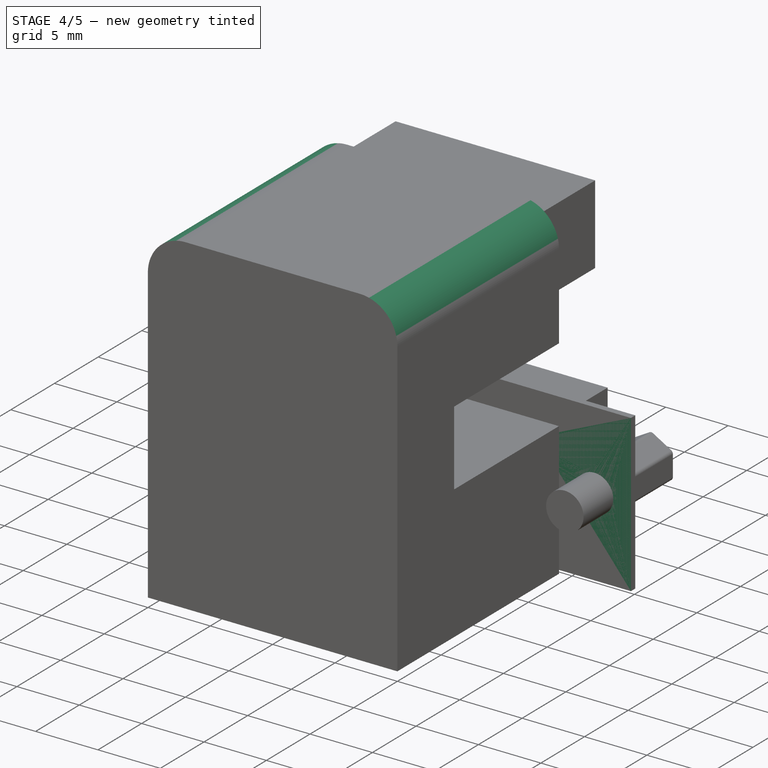
[diagram: stage 4 of 5 — iso view after this stage's code; geometry added in this stage tinted green]
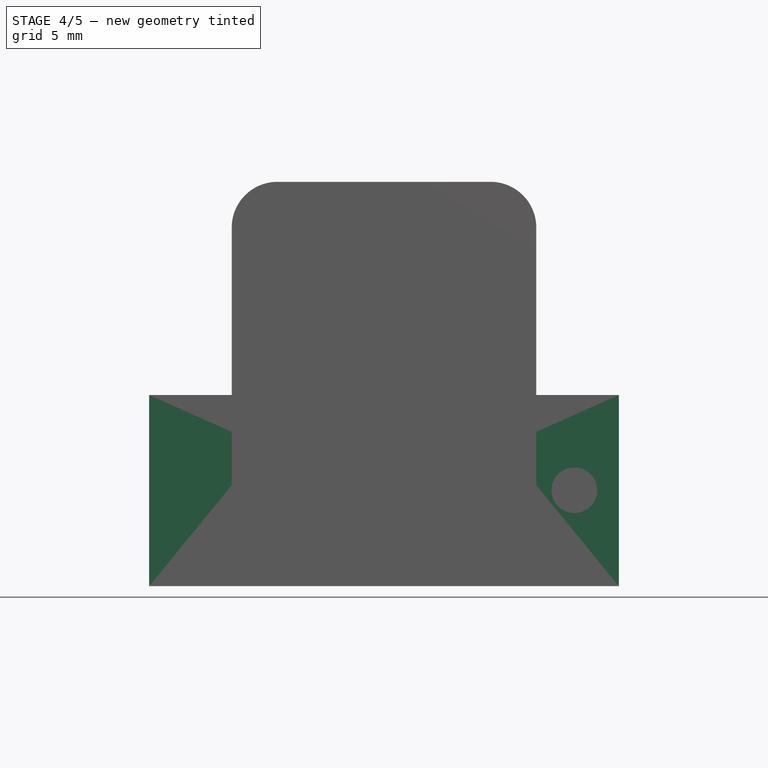
[diagram: stage 4 of 5 — front view after this stage's code; geometry added in this stage tinted green]
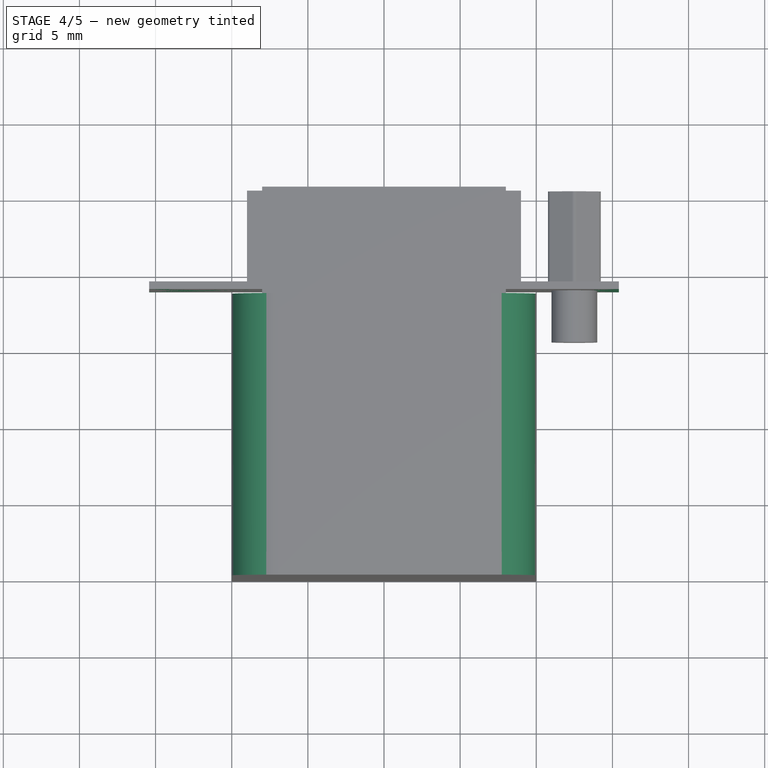
[diagram: stage 4 of 5 — top view after this stage's code; geometry added in this stage tinted green]
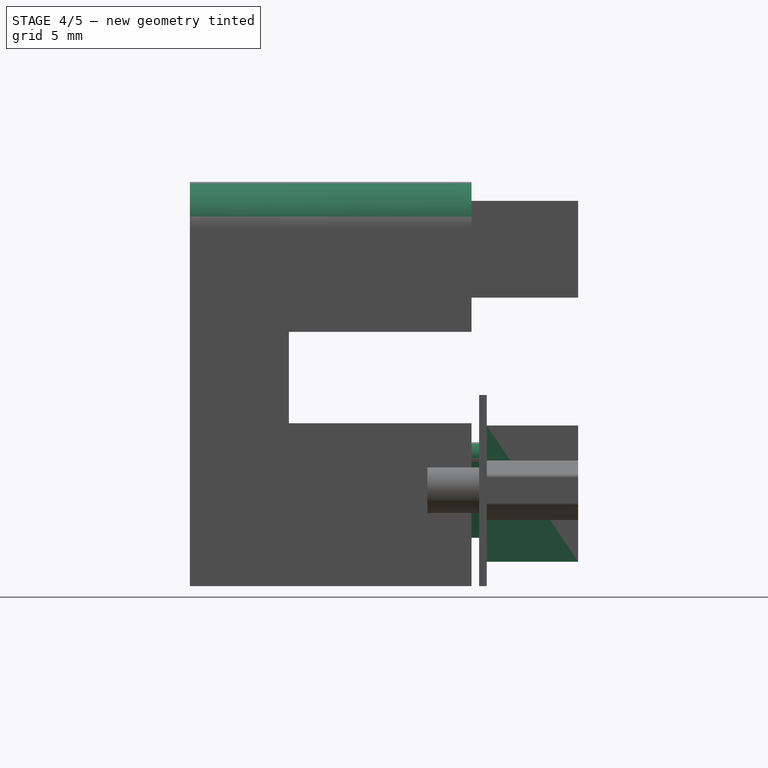
[diagram: stage 4 of 5 — right view after this stage's code; geometry added in this stage tinted green]
FEATURE [PartDesign::AdditiveBox] Box013
  AttacherType = Attacher::AttachEngine3D
  AttachmentOffset = pos=(-15.42,19,0) rot=(0,0,1;0rad)
  Height = 12.55
  Length = 30.84
  MapMode = 5
  Placement = pos=(-15.42,19,0) rot=(0,0,1;0rad)
  Support = -> [XY_Plane004]
  Width = 6.5
FEATURE [PartDesign::SubtractiveBox] Box014
  AttacherType = Attacher::AttachEngine3D
  AttachmentOffset = pos=(9,19.5,0) rot=(0,0,1;0rad)
  BaseFeature = -> Box013
  Height = 12.55
  Length = 6.5
  MapMode = 5
  Placement = pos=(9,19.5,0) rot=(0,0,1;0rad)
  Support = -> [XY_Plane004]
  Width = 6
FEATURE [PartDesign::SubtractiveBox] Box015
  AttacherType = Attacher::AttachEngine3D
  AttachmentOffset = pos=(-15.5,19.5,0) rot=(0,0,1;0rad)
  BaseFeature = -> Box014
  Height = 12.55
  Length = 6.5
  MapMode = 5
  Placement = pos=(-15.5,19.5,0) rot=(0,0,1;0rad)
  Support = -> [XY_Plane004]
  Width = 6
FEATURE [PartDesign::SubtractiveBox] Box016
  AttacherType = Attacher::AttachEngine3D
  AttachmentOffset = pos=(-7.9,19,3) rot=(0,0,1;0rad)
  BaseFeature = -> Box015
  Height = 6.2
  Length = 15.8
  MapMode = 5
  Placement = pos=(-7.9,19,3) rot=(0,0,1;0rad)
  Support = -> [XY_Plane004]
  Width = 7
FEATURE [PartDesign::SubtractiveBox] Box017
  AttacherType = Attacher::AttachEngine3D
  AttachmentOffset = pos=(-11.5,19.5,0) rot=(0,0,1;0rad)
  BaseFeature = -> Box016
  Height = 1.6
  Length = 23
  MapMode = 5
  Placement = pos=(-11.5,19.5,0) rot=(0,0,1;0rad)
  Support = -> [XY_Plane004]
  Width = 6
FEATURE [PartDesign::SubtractiveBox] Box018
  AttacherType = Attacher::AttachEngine3D
  AttachmentOffset = pos=(-9.5,19.5,10.55) rot=(0,0,1;0rad)
  BaseFeature = -> Box017
  Height = 2
  Length = 19
  MapMode = 5
  Placement = pos=(-9.5,19.5,10.55) rot=(0,0,1;0rad)
  Support = -> [XY_Plane004]
  Width = 6
FEATURE [PartDesign::SubtractiveBox] Box027  label="back-leftmost-up-pin-hole"
  AttacherType = Attacher::AttachEngine3D
  AttachmentOffset = pos=(3.65,4.65,0) rot=(0,0,1;0rad)
  BaseFeature = -> Box026
  Height = 24
  Length = 1
  MapMode = 5
  Placement = pos=(3.65,4.65,0) rot=(0,0,1;0rad)
  Support = -> [XY_Plane]
  Width = 1
FEATURE [PartDesign::SubtractiveBox] Box028  label="back-pin-hole-x"
  AttacherType = Attacher::AttachEngine3D
  AttachmentOffset = pos=(-4.6,4.65,0) rot=(0,0,1;0rad)
  BaseFeature = -> Box027
  Height = 24
  Length = 1
  MapMode = 5
  Placement = pos=(-4.6,4.65,0) rot=(0,0,1;0rad)
  Support = -> [XY_Plane]
  Width = 1
FEATURE [PartDesign::SubtractiveBox] Box029  label="nose-angle-cut-low-left"
  AttacherType = Attacher::AttachEngine3D
  AttachmentOffset = pos=(6.735,18.5,2.3) rot=(0,1,0;0.174533rad)
  BaseFeature = -> Box028
  Height = 8
  Length = 2
  MapMode = 5
  Placement = pos=(6.735,18.5,2.3) rot=(0,1,0;0.174533rad)
  Support = -> [XY_Plane]
  Width = 8
FEATURE [PartDesign::SubtractiveBox] Box030  label="nose-angle-cut-low-right"
  AttacherType = Attacher::AttachEngine3D
  AttachmentOffset = pos=(-8.765,18.5,2.3) rot=(0,-1,0;0.174533rad)
  BaseFeature = -> Box029
  Height = 8
  Length = 2
  MapMode = 5
  Placement = pos=(-8.765,18.5,2.3) rot=(0,-1,0;0.174533rad)
  Support = -> [XY_Plane]
  Width = 8
FEATURE [PartDesign::Body] Body004  label="Front-plate1"
  Group = -> [Box013,Box014,Box015,Box016,Box017,Box018,Cylinder004,Cylinder005,Chamfer,Fillet,Fillet001,Fillet002,Fillet003,Fillet004,Fillet005,Cone,Fillet006,Cone001,Fillet007,Box031,Box032]
  Origin = -> Origin004
  Tip = -> Box032
FEATURE [PartDesign::SubtractiveBox] Box033
  AttacherType = Attacher::AttachEngine3D
  AttachmentOffset = pos=(-8,18.5,7.45) rot=(0,0,1;0rad)
  BaseFeature = -> Box030
  Height = 2
  Length = 2
  MapMode = 5
  Placement = pos=(-8,18.5,7.45) rot=(0,0,1;0rad)
  Support = -> [XY_Plane]
  Width = 7
FEATURE [PartDesign::SubtractiveBox] Box034
  AttacherType = Attacher::AttachEngine3D
  AttachmentOffset = pos=(6,18.5,7.45) rot=(0,0,1;0rad)
  BaseFeature = -> Box033
  Height = 2
  Length = 2
  MapMode = 5
  Placement = pos=(6,18.5,7.45) rot=(0,0,1;0rad)
  Support = -> [XY_Plane]
  Width = 7
FEATURE [PartDesign::AdditiveCylinder] Cylinder006
  Angle = 360
  AttacherType = Attacher::AttachEngine3D
  AttachmentOffset = pos=(6.815,25.5,8.45) rot=(1,0,0;1.5708rad)
  BaseFeature = -> Box034
  Height = 7
  MapMode = 5
  Placement = pos=(6.815,25.5,8.45) rot=(1,0,0;1.5708rad)
  Radius = 1
  Support = -> [XY_Plane]
FEATURE [PartDesign::AdditiveBox] Box035
  AttacherType = Attacher::AttachEngine3D
  AttachmentOffset = pos=(6,18.5,7.45) rot=(0,0,1;0rad)
  BaseFeature = -> Cylinder006
  Height = 2
  Length = 0.8
  MapMode = 5
  Placement = pos=(6,18.5,7.45) rot=(0,0,1;0rad)
  Support = -> [XY_Plane]
  Width = 7
FEATURE [PartDesign::AdditiveBox] Box036
  AttacherType = Attacher::AttachEngine3D
  AttachmentOffset = pos=(7.6075,7.25,-25.5) rot=(0,0,1;1.39626rad)
  BaseFeature = -> Box035
  Height = 7
  Length = 1
  MapMode = 5
  Placement = pos=(7.6075,25.5,7.25) rot=(0.6444,-0.540716,0.540716;1.99673rad)
  Support = -> [XZ_Plane]
  Width = 1
FEATURE [PartDesign::AdditiveCylinder] Cylinder007
  Angle = 360
  AttacherType = Attacher::AttachEngine3D
  AttachmentOffset = pos=(-6.815,25.5,8.45) rot=(1,0,0;1.5708rad)
  BaseFeature = -> Box036
  Height = 7
  MapMode = 5
  Placement = pos=(-6.815,25.5,8.45) rot=(1,0,0;1.5708rad)
  Radius = 1
  Support = -> [XY_Plane]
FEATURE [PartDesign::AdditiveBox] Box037
  AttacherType = Attacher::AttachEngine3D
  AttachmentOffset = pos=(-6.8,18.5,7.45) rot=(0,0,1;0rad)
  BaseFeature = -> Cylinder007
  Height = 2
  Length = 0.8
  MapMode = 5
  Placement = pos=(-6.8,18.5,7.45) rot=(0,0,1;0rad)
  Support = -> [XY_Plane]
  Width = 7
FEATURE [PartDesign::AdditiveBox] Box038
  AttacherType = Attacher::AttachEngine3D
  AttachmentOffset = pos=(-7.7834,8.25,-25.5) rot=(0,0,-1;1.39626rad)
  BaseFeature = -> Box037
  Height = 7
  Length = 1
  MapMode = 5
  Placement = pos=(-7.7834,25.5,8.25) rot=(0.6444,0.540716,-0.540716;1.99673rad)
  Support = -> [XZ_Plane]
  Width = 1
FEATURE [PartDesign::Fillet] Fillet008
  Base = -> Box038 [Edge16,Edge1]
  BaseFeature = -> Box038
  Placement = pos=(-7.7834,25.5,8.25) rot=(0.6444,0.540716,-0.540716;1.99673rad)
  Radius = 3
  SupportTransform = false
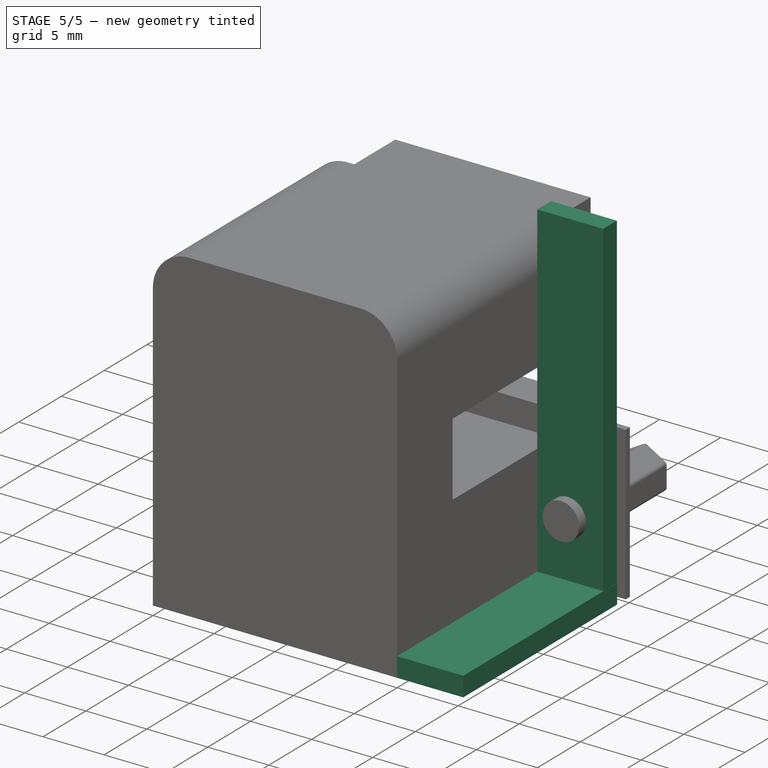
[diagram: stage 5 of 5 — iso view after this stage's code; geometry added in this stage tinted green]
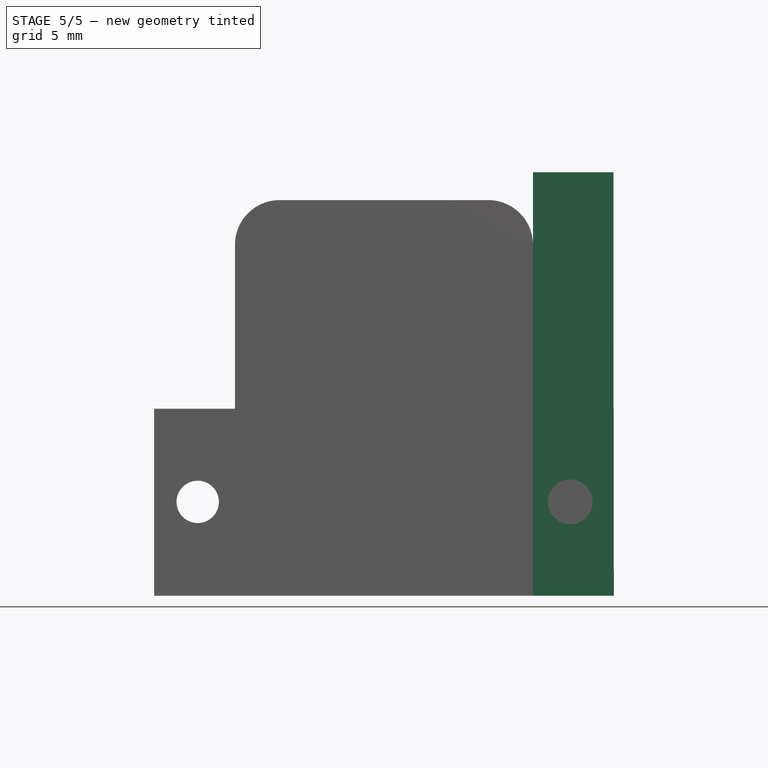
[diagram: stage 5 of 5 — front view after this stage's code; geometry added in this stage tinted green]
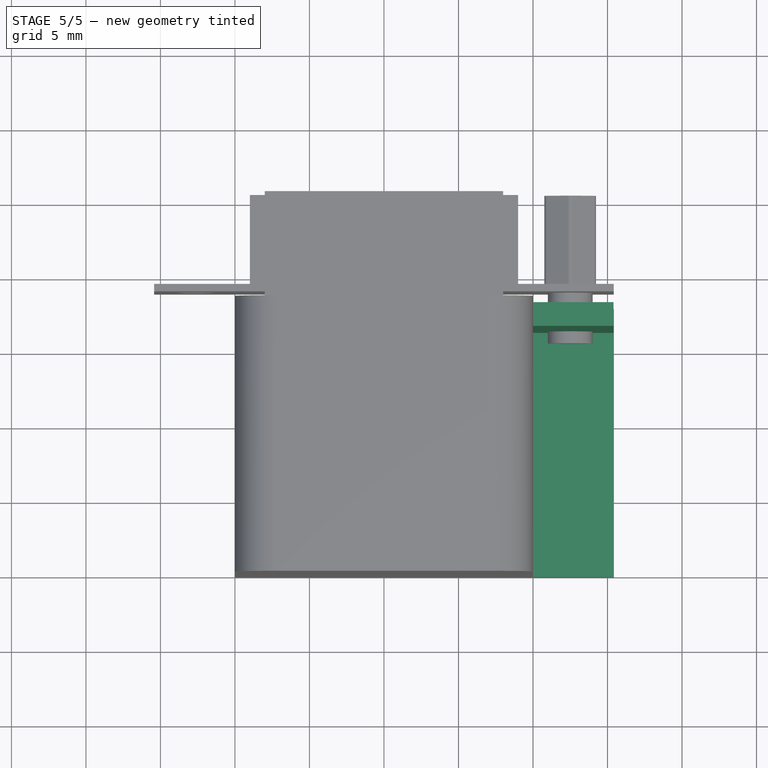
[diagram: stage 5 of 5 — top view after this stage's code; geometry added in this stage tinted green]
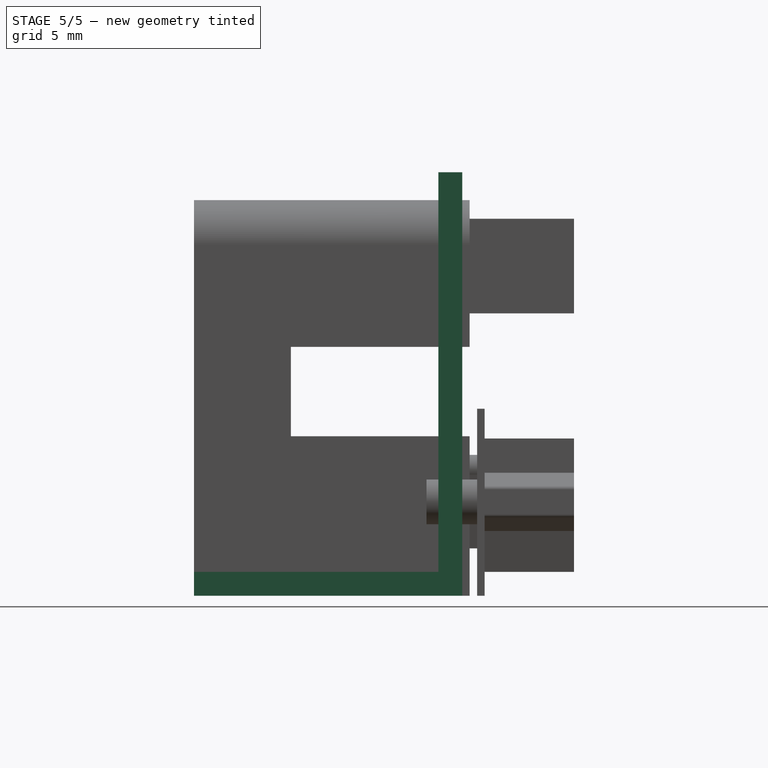
[diagram: stage 5 of 5 — right view after this stage's code; geometry added in this stage tinted green]
FEATURE [PartDesign::AdditiveBox] Box004
  AttacherType = Attacher::AttachEngine3D
  AttachmentOffset = pos=(10,0,0) rot=(0,0,1;0rad)
  Height = 1.6
  Length = 5.425
  MapMode = 5
  Placement = pos=(10,0,0) rot=(0,0,1;0rad)
  Support = -> [XY_Plane002]
  Width = 18
FEATURE [PartDesign::AdditiveBox] Box005
  AttacherType = Attacher::AttachEngine3D
  AttachmentOffset = pos=(10,16.4,0) rot=(0,0,1;0rad)
  BaseFeature = -> Box004
  Height = 28.42
  Length = 5.4
  MapMode = 5
  Placement = pos=(10,16.4,0) rot=(0,0,1;0rad)
  Support = -> [XY_Plane002]
  Width = 1.6
FEATURE [PartDesign::Body] Body002  label="Metal-chassis1"
  Group = -> [Box004,Box005]
  Origin = -> Origin002
  Tip = -> Box005
FEATURE [PartDesign::AdditiveBox] Box007
  AttacherType = Attacher::AttachEngine3D
  AttachmentOffset = pos=(10,0,0) rot=(0,0,1;0rad)
  Height = 1.6
  Length = 5.425
  MapMode = 5
  Placement = pos=(10,0,0) rot=(0,0,1;0rad)
  Support = -> [XY_Plane003]
  Width = 18
FEATURE [PartDesign::AdditiveBox] Box006
  AttacherType = Attacher::AttachEngine3D
  AttachmentOffset = pos=(10,16.4,0) rot=(0,0,1;0rad)
  BaseFeature = -> Box007
  Height = 28.42
  Length = 5.4
  MapMode = 5
  Placement = pos=(10,16.4,0) rot=(0,0,1;0rad)
  Support = -> [XY_Plane003]
  Width = 1.6
FEATURE [PartDesign::SubtractiveCylinder] Cylinder004  label="screw-hole-front-left"
  Angle = 360
  AttacherType = Attacher::AttachEngine3D
  AttachmentOffset = pos=(12.5,21,6.3) rot=(1,0,0;1.5708rad)
  BaseFeature = -> Box018
  Height = 3
  MapMode = 5
  Placement = pos=(12.5,21,6.3) rot=(1,0,0;1.5708rad)
  Radius = 1.42
  Support = -> [XY_Plane004]
FEATURE [PartDesign::SubtractiveCylinder] Cylinder005  label="screw-hole-front-right"
  Angle = 360
  AttacherType = Attacher::AttachEngine3D
  AttachmentOffset = pos=(-12.5,20,6.3) rot=(1,0,0;1.5708rad)
  BaseFeature = -> Cylinder004
  Height = 3
  MapMode = 5
  Placement = pos=(-12.5,20,6.3) rot=(1,0,0;1.5708rad)
  Radius = 1.42
  Support = -> [XY_Plane004]
FEATURE [PartDesign::Chamfer] Chamfer
  Angle = 10
  Base = -> Cylinder005 [Edge53,Edge55]
  BaseFeature = -> Cylinder005
  ChamferType = 2
  FlipDirection = false
  Placement = pos=(-12.5,20,6.3) rot=(1,0,0;1.5708rad)
  Size = 4.5
  Size2 = 1
  SupportTransform = false
FEATURE [PartDesign::Fillet] Fillet
  Base = -> Chamfer [Edge14]
  BaseFeature = -> Chamfer
  Placement = pos=(-12.5,20,6.3) rot=(1,0,0;1.5708rad)
  Radius = 5
  SupportTransform = false
FEATURE [PartDesign::Fillet] Fillet001
  Base = -> Fillet [Edge16]
  BaseFeature = -> Fillet
  Placement = pos=(-12.5,20,6.3) rot=(1,0,0;1.5708rad)
  Radius = 1.5
  SupportTransform = false
FEATURE [PartDesign::Fillet] Fillet002
  Base = -> Fillet001 [Edge26]
  BaseFeature = -> Fillet001
  Placement = pos=(-12.5,20,6.3) rot=(1,0,0;1.5708rad)
  Radius = 5
  SupportTransform = false
FEATURE [PartDesign::Fillet] Fillet003
  Base = -> Fillet002 [Edge17]
  BaseFeature = -> Fillet002
  Placement = pos=(-12.5,20,6.3) rot=(1,0,0;1.5708rad)
  Radius = 1.5
  SupportTransform = false
FEATURE [PartDesign::Fillet] Fillet004
  Base = -> Fillet003 [Edge25]
  BaseFeature = -> Fillet003
  Placement = pos=(-12.5,20,6.3) rot=(1,0,0;1.5708rad)
  Radius = 1.5
  SupportTransform = false
FEATURE [PartDesign::Fillet] Fillet005
  Base = -> Fillet004 [Edge18]
  BaseFeature = -> Fillet004
  Placement = pos=(-12.5,20,6.3) rot=(1,0,0;1.5708rad)
  Radius = 1.5
  SupportTransform = false
FEATURE [PartDesign::SubtractiveCone] Cone
  Angle = 360
  AttacherType = Attacher::AttachEngine3D
  AttachmentOffset = pos=(12.5,19.5,6.3) rot=(1,0,0;1.5708rad)
  BaseFeature = -> Fillet005
  Height = 0.2
  MapMode = 5
  Placement = pos=(12.5,19.5,6.3) rot=(1,0,0;1.5708rad)
  Radius1 = 2.42
  Radius2 = 1.32
  Support = -> [XY_Plane004]
FEATURE [PartDesign::Fillet] Fillet006
  Base = -> Cone [Edge56]
  BaseFeature = -> Cone
  Placement = pos=(12.5,19.5,6.3) rot=(1,0,0;1.5708rad)
  Radius = 0.38
  SupportTransform = false
FEATURE [PartDesign::SubtractiveCone] Cone001
  Angle = 360
  AttacherType = Attacher::AttachEngine3D
  AttachmentOffset = pos=(-12.5,19.5,6.3) rot=(1,0,0;1.5708rad)
  BaseFeature = -> Fillet006
  Height = 0.2
  MapMode = 5
  Placement = pos=(-12.5,19.5,6.3) rot=(1,0,0;1.5708rad)
  Radius1 = 2.42
  Radius2 = 1.32
  Support = -> [XY_Plane004]
FEATURE [PartDesign::Fillet] Fillet007
  Base = -> Cone001 [Edge60]
  BaseFeature = -> Cone001
  Placement = pos=(-12.5,19.5,6.3) rot=(1,0,0;1.5708rad)
  Radius = 0.38
  SupportTransform = false
FEATURE [PartDesign::SubtractiveBox] Box031
  AttacherType = Attacher::AttachEngine3D
  AttachmentOffset = pos=(8,19.5,0) rot=(0,1,0;0.174533rad)
  BaseFeature = -> Fillet007
  Height = 10
  Length = 1
  MapMode = 5
  Placement = pos=(8,19.5,0) rot=(0,1,0;0.174533rad)
  Support = -> [XY_Plane004]
  Width = 6
FEATURE [PartDesign::SubtractiveBox] Box032
  AttacherType = Attacher::AttachEngine3D
  AttachmentOffset = pos=(-9,19.5,0) rot=(0,-1,0;0.174533rad)
  BaseFeature = -> Box031
  Height = 10
  Length = 1
  MapMode = 5
  Placement = pos=(-9,19.5,0) rot=(0,-1,0;0.174533rad)
  Support = -> [XY_Plane004]
  Width = 6
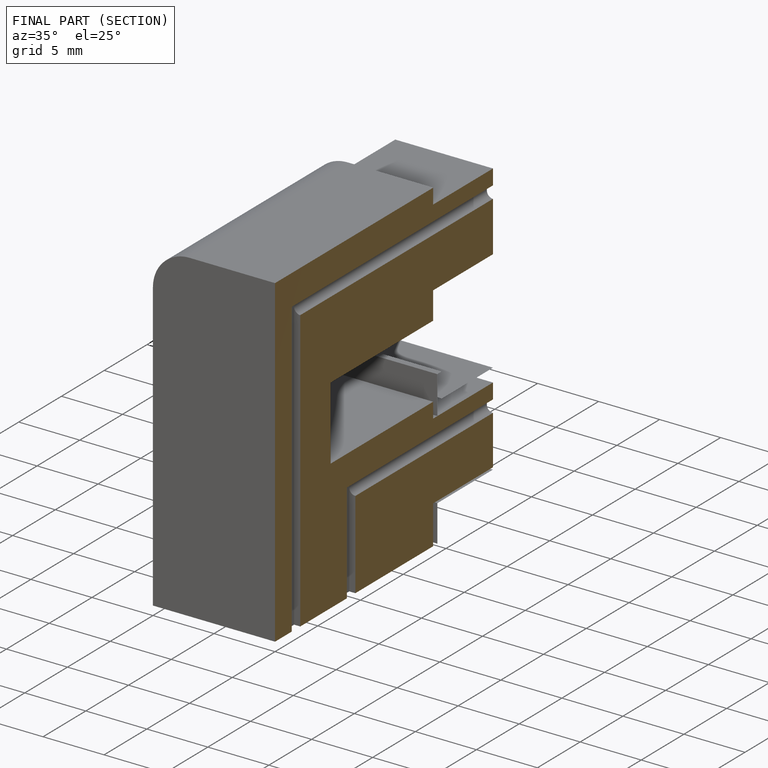
[diagram: finished part — half-section view (interior)]
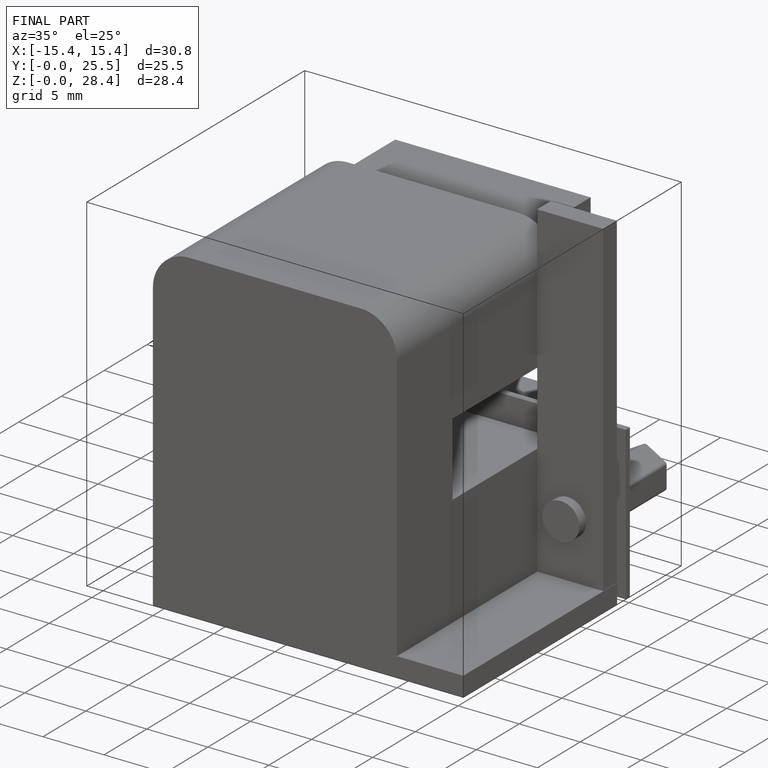
[diagram: finished part — iso view with bounding-box wireframe]
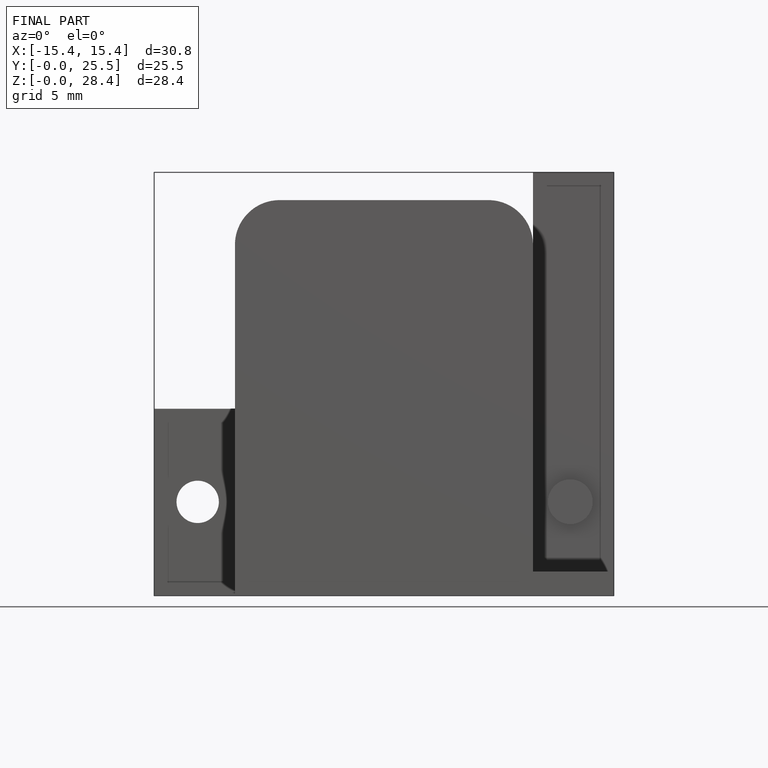
[diagram: finished part — front view with bounding-box wireframe]
